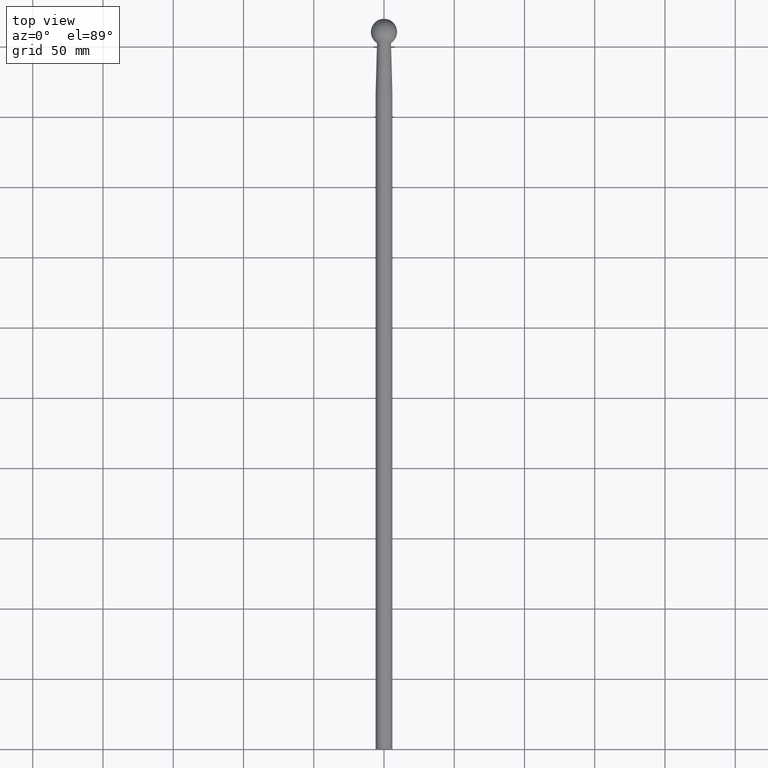
[diagram: clean part render]
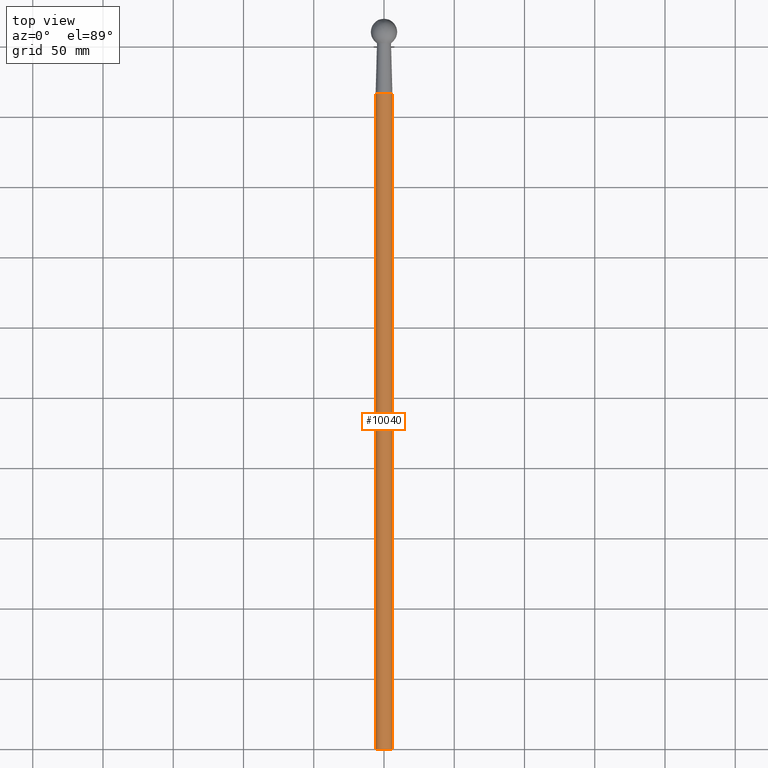
[diagram: same view with one face highlighted and labeled with its STEP entity id]
A machine part, top view. The second image highlights one B-rep face of the part: STEP entity #10040.
In plain terms, the highlighted cylindrical surface (bore or boss wall) has radius 6 mm, axis along (-0, -1, -0).
Its self-contained STEP definition (entity closure, byte-faithful):
#27 = CIRCLE ( 'NONE', #2684, 6.000000000000000000 ) ;
#821 = ORIENTED_EDGE ( 'NONE', *, *, #3491, .F. ) ;
#870 = EDGE_LOOP ( 'NONE', ( #821 ) ) ;
#1273 = FACE_OUTER_BOUND ( 'NONE', #870, .T. ) ;
#2249 = EDGE_CURVE ( 'NONE', #7970, #7970, #5778, .T. ) ;
#2684 = AXIS2_PLACEMENT_3D ( 'NONE', #8270, #9860, #5613 ) ;
#3143 = DIRECTION ( 'NONE',  ( -0.000000000000000000, -1.000000000000000000, -0.000000000000000000 ) ) ;
#3298 = DIRECTION ( 'NONE',  ( -0.000000000000000000, -1.000000000000000000, -0.000000000000000000 ) ) ;
#3491 = EDGE_CURVE ( 'NONE', #4800, #4800, #27, .T. ) ;
#4424 = AXIS2_PLACEMENT_3D ( 'NONE', #6615, #3143, #9237 ) ;
#4800 = VERTEX_POINT ( 'NONE', #8401 ) ;
#5613 = DIRECTION ( 'NONE',  ( 0.000000000000000000, 0.000000000000000000, -1.000000000000000000 ) ) ;
#5778 = CIRCLE ( 'NONE', #4424, 6.000000000000000000 ) ;
#6012 = CARTESIAN_POINT ( 'NONE',  ( 0.000000000000000000, 0.000000000000000000, 0.000000000000000000 ) ) ;
#6286 = ORIENTED_EDGE ( 'NONE', *, *, #2249, .T. ) ;
#6349 = EDGE_LOOP ( 'NONE', ( #6286 ) ) ;
#6615 = CARTESIAN_POINT ( 'NONE',  ( 0.000000000000000000, 466.4222527892985681, 0.000000000000000000 ) ) ;
#7296 = FACE_OUTER_BOUND ( 'NONE', #6349, .T. ) ;
#7839 = CYLINDRICAL_SURFACE ( 'NONE', #7871, 6.000000000000000000 ) ;
#7871 = AXIS2_PLACEMENT_3D ( 'NONE', #6012, #3298, #10272 ) ;
#7970 = VERTEX_POINT ( 'NONE', #11051 ) ;
#8270 = CARTESIAN_POINT ( 'NONE',  ( 0.000000000000000000, 0.000000000000000000, 0.000000000000000000 ) ) ;
#8401 = CARTESIAN_POINT ( 'NONE',  ( 0.000000000000000000, 0.000000000000000000, -6.000000000000000000 ) ) ;
#9237 = DIRECTION ( 'NONE',  ( 0.000000000000000000, 0.000000000000000000, -1.000000000000000000 ) ) ;
#9860 = DIRECTION ( 'NONE',  ( -0.000000000000000000, -1.000000000000000000, -0.000000000000000000 ) ) ;
#10040 = ADVANCED_FACE ( 'NONE', ( #7296, #1273 ), #7839, .T. ) ;
#10272 = DIRECTION ( 'NONE',  ( 0.000000000000000000, 0.000000000000000000, -1.000000000000000000 ) ) ;
#11051 = CARTESIAN_POINT ( 'NONE',  ( 0.000000000000000000, 466.4222527892985681, -6.000000000000000000 ) ) ;